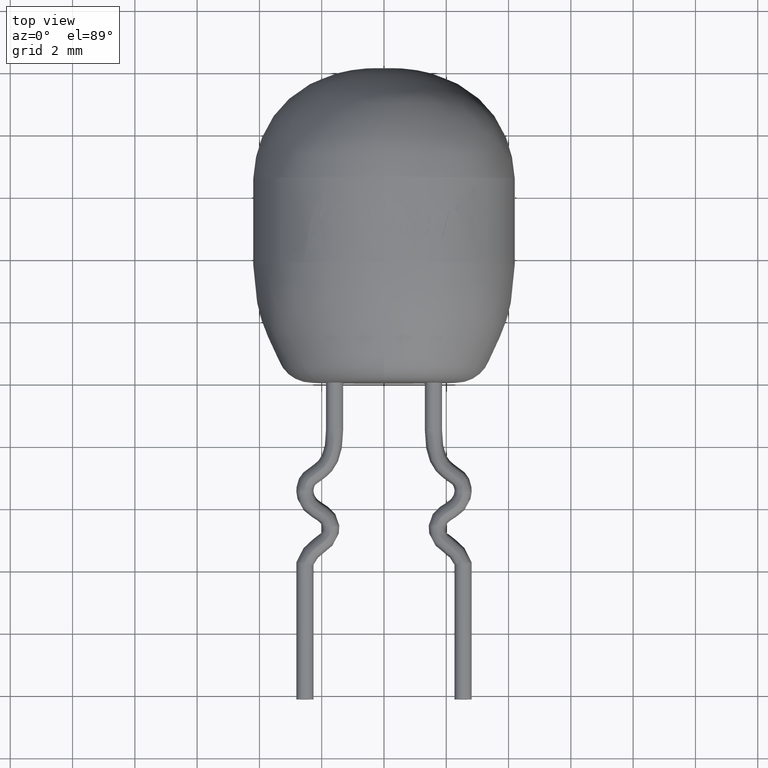
[diagram: clean part render]
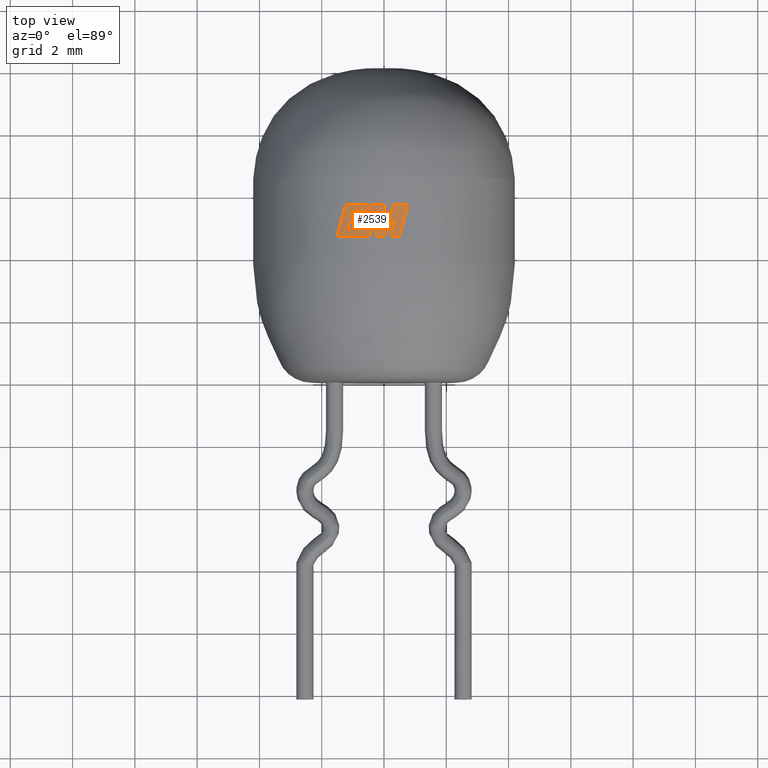
[diagram: same view with one face highlighted and labeled with its STEP entity id]
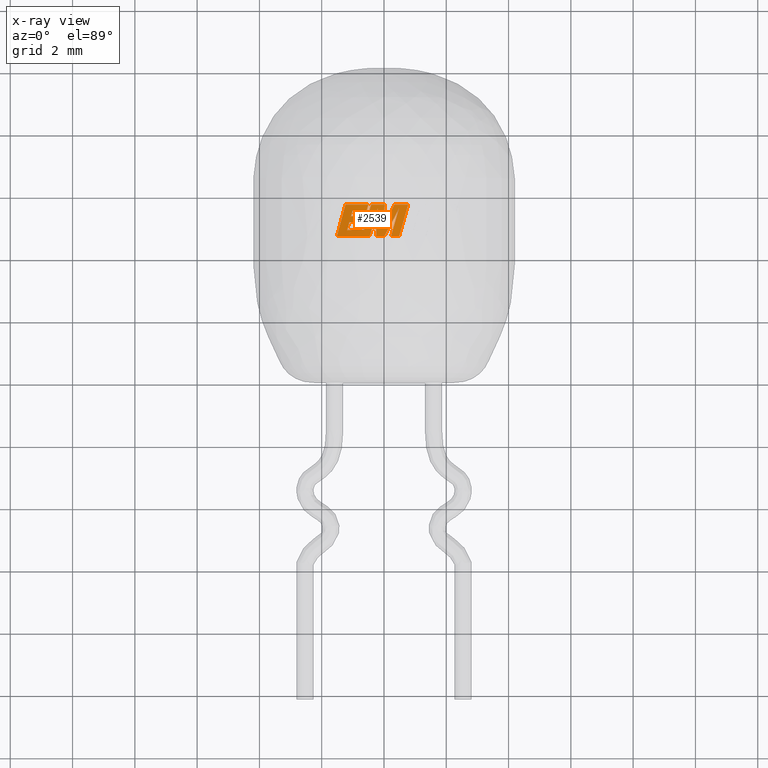
[diagram: x-ray of the same camera — body ghosted, the highlighted face saturated]
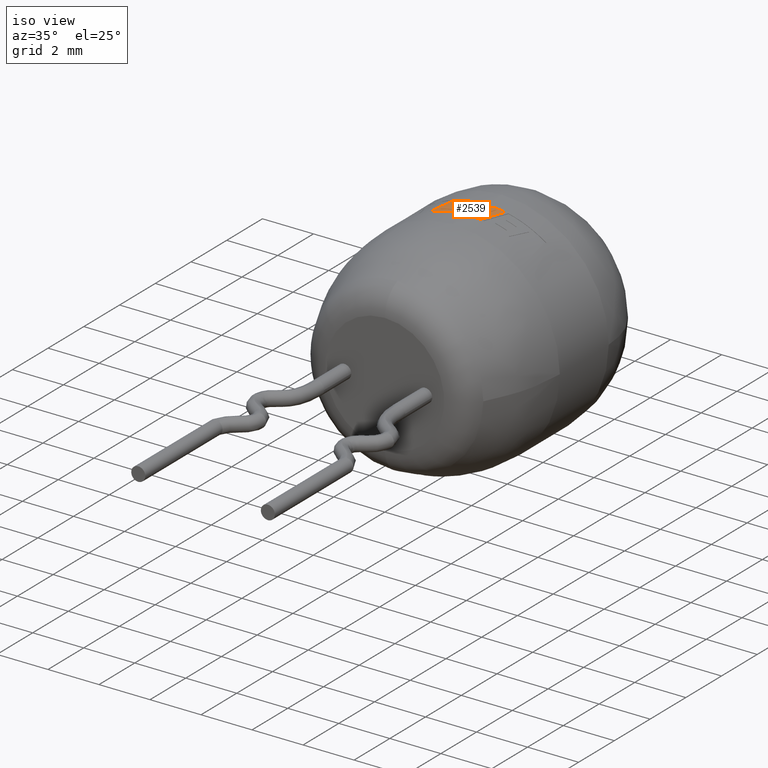
[diagram: same view with one face highlighted and labeled with its STEP entity id]
A machine part, top view. The second image highlights one B-rep face of the part: STEP entity #2539.
The next image is the same camera in x-ray: the body ghosted, the highlighted face saturated — about 0% of this face is hidden behind the body in this view.
A second angle (iso view) of the same face is appended — the face is thin or edge-on in the first view.
In plain terms, the highlighted cylindrical surface (partial cylindrical patch) has radius 4.19 mm, axis along (-0, -1, -0).
Its self-contained STEP definition (entity closure, byte-faithful):
#2 = CARTESIAN_POINT ( 'NONE',  ( 0.0000000000000000000, 4.638143343826302900, 0.0000000000000000000 ) ) ;
#6 = DIRECTION ( 'NONE',  ( 0.0000000000000000000, 0.0000000000000000000, -1.000000000000000000 ) ) ;
#15 = EDGE_CURVE ( 'NONE', #822, #416, #1173, .T. ) ;
#47 = CARTESIAN_POINT ( 'NONE',  ( -0.4583569405541485500, 4.638143343826302900, 4.164854008851432500 ) ) ;
#93 = EDGE_CURVE ( 'NONE', #3045, #3731, #2008, .T. ) ;
#249 = B_SPLINE_CURVE_WITH_KNOTS ( 'NONE', 3,
 ( #3732, #4161, #2361, #4533 ),
 .UNSPECIFIED., .F., .F.,
 ( 4, 4 ),
 ( 0.0000000000000000000, 1.000000000000000000 ),
 .UNSPECIFIED. ) ;
#250 = AXIS2_PLACEMENT_3D ( 'NONE', #2, #5716, #3066 ) ;
#262 = EDGE_CURVE ( 'NONE', #1455, #5232, #5220, .T. ) ;
#269 = VERTEX_POINT ( 'NONE', #5280 ) ;
#271 = ORIENTED_EDGE ( 'NONE', *, *, #1000, .F. ) ;
#282 = CARTESIAN_POINT ( 'NONE',  ( -0.007537431420621316200, 5.166097507863295100, 4.190013053159339600 ) ) ;
#360 = AXIS2_PLACEMENT_3D ( 'NONE', #5462, #3710, #2419 ) ;
#401 = CARTESIAN_POINT ( 'NONE',  ( 0.3181570098392297900, 4.938738374337305900, 4.178790733340712800 ) ) ;
#416 = VERTEX_POINT ( 'NONE', #2033 ) ;
#437 = EDGE_CURVE ( 'NONE', #2758, #269, #4368, .T. ) ;
#448 = CIRCLE ( 'NONE', #451, 4.190000000000001300 ) ;
#451 = AXIS2_PLACEMENT_3D ( 'NONE', #1676, #4654, #5219 ) ;
#460 = CARTESIAN_POINT ( 'NONE',  ( -1.185196709016116000, 4.829930339892737100, 4.018881531090134000 ) ) ;
#464 = CARTESIAN_POINT ( 'NONE',  ( 0.6778167886180592700, 5.310193749663034700, 4.135934410469850800 ) ) ;
#470 = ORIENTED_EDGE ( 'NONE', *, *, #15, .T. ) ;
#477 = CARTESIAN_POINT ( 'NONE',  ( -1.162427017356346000, 4.913445704328909300, 4.025596474890218900 ) ) ;
#501 = DIRECTION ( 'NONE',  ( -0.0000000000000000000, -1.000000000000000000, -0.0000000000000000000 ) ) ;
#533 = ORIENTED_EDGE ( 'NONE', *, *, #3682, .F. ) ;
#566 = DIRECTION ( 'NONE',  ( -0.0000000000000000000, -1.000000000000000000, -0.0000000000000000000 ) ) ;
#648 = CARTESIAN_POINT ( 'NONE',  ( -1.418078816155942300, 4.974168546744667900, 3.943914024496912900 ) ) ;
#654 = AXIS2_PLACEMENT_3D ( 'NONE', #5563, #3803, #2517 ) ;
#665 = CARTESIAN_POINT ( 'NONE',  ( 0.0000000000000000000, 5.646218952581399700, 0.0000000000000000000 ) ) ;
#685 = CARTESIAN_POINT ( 'NONE',  ( -0.2522347263218190400, 4.638143343826302900, 4.182400942381942600 ) ) ;
#694 = VERTEX_POINT ( 'NONE', #5703 ) ;
#759 = CARTESIAN_POINT ( 'NONE',  ( 0.0000000000000000000, 5.266835032749344900, 0.0000000000000000000 ) ) ;
#790 = B_SPLINE_CURVE_WITH_KNOTS ( 'NONE', 3,
 ( #5547, #4603, #648, #2403 ),
 .UNSPECIFIED., .F., .F.,
 ( 4, 4 ),
 ( 0.0000000000000000000, 1.000000000000000000 ),
 .UNSPECIFIED. ) ;
#791 = CARTESIAN_POINT ( 'NONE',  ( -0.4093811949506660500, 5.646218952581399700, 4.169952881894563900 ) ) ;
#810 = CARTESIAN_POINT ( 'NONE',  ( 0.3355474842542870400, 5.646218952581400600, 4.176542575601334100 ) ) ;
#822 = VERTEX_POINT ( 'NONE', #2048 ) ;
#827 = CARTESIAN_POINT ( 'NONE',  ( -1.065508509919544700, 5.266835032749344900, 4.052257594883257300 ) ) ;
#850 = EDGE_CURVE ( 'NONE', #2373, #3713, #448, .T. ) ;
#912 = CARTESIAN_POINT ( 'NONE',  ( 0.3322953650186756800, 5.239333404848309800, 4.179801556906435100 ) ) ;
#923 = B_SPLINE_CURVE_WITH_KNOTS ( 'NONE', 3,
 ( #1507, #5487, #4968, #3691 ),
 .UNSPECIFIED., .F., .F.,
 ( 4, 4 ),
 ( 0.0000000000000000000, 1.000000000000000000 ),
 .UNSPECIFIED. ) ;
#934 = CARTESIAN_POINT ( 'NONE',  ( -0.2021232349208143300, 5.535606561229161400, 4.185122005139773700 ) ) ;
#991 = CARTESIAN_POINT ( 'NONE',  ( 0.2321738366469667800, 4.638143343826302900, 4.183562514123176300 ) ) ;
#1000 = EDGE_CURVE ( 'NONE', #2637, #4742, #1565, .T. ) ;
#1071 = DIRECTION ( 'NONE',  ( 0.0000000000000000000, 0.0000000000000000000, -1.000000000000000000 ) ) ;
#1117 = CARTESIAN_POINT ( 'NONE',  ( 0.0000000000000000000, 5.080476433201253500, 0.0000000000000000000 ) ) ;
#1173 = CIRCLE ( 'NONE', #5632, 4.190000000000001300 ) ;
#1214 = ORIENTED_EDGE ( 'NONE', *, *, #3918, .T. ) ;
#1221 = CARTESIAN_POINT ( 'NONE',  ( -1.508078266213100500, 4.638143343826302900, 3.909194283094112900 ) ) ;
#1227 = EDGE_CURVE ( 'NONE', #5330, #1603, #2794, .T. ) ;
#1313 = ORIENTED_EDGE ( 'NONE', *, *, #3007, .T. ) ;
#1319 = ORIENTED_EDGE ( 'NONE', *, *, #2189, .T. ) ;
#1404 = ORIENTED_EDGE ( 'NONE', *, *, #93, .T. ) ;
#1444 = ORIENTED_EDGE ( 'NONE', *, *, #3867, .T. ) ;
#1450 = EDGE_CURVE ( 'NONE', #694, #2373, #3528, .T. ) ;
#1455 = VERTEX_POINT ( 'NONE', #4730 ) ;
#1507 = CARTESIAN_POINT ( 'NONE',  ( -1.065508509919544700, 5.266835032749344900, 4.052257594883257300 ) ) ;
#1518 = VERTEX_POINT ( 'NONE', #4313 ) ;
#1534 = ORIENTED_EDGE ( 'NONE', *, *, #1227, .T. ) ;
#1558 = CARTESIAN_POINT ( 'NONE',  ( -0.5090844841951857000, 5.646218952581399700, 4.158958161361055300 ) ) ;
#1565 = CIRCLE ( 'NONE', #4244, 4.190000000000001300 ) ;
#1595 = ORIENTED_EDGE ( 'NONE', *, *, #4724, .T. ) ;
#1603 = VERTEX_POINT ( 'NONE', #3059 ) ;
#1641 = CIRCLE ( 'NONE', #360, 4.190000000000001300 ) ;
#1672 = ORIENTED_EDGE ( 'NONE', *, *, #437, .T. ) ;
#1676 = CARTESIAN_POINT ( 'NONE',  ( 0.0000000000000000000, 5.646218952581399700, 0.0000000000000000000 ) ) ;
#1694 = ORIENTED_EDGE ( 'NONE', *, *, #1450, .T. ) ;
#1774 = CARTESIAN_POINT ( 'NONE',  ( 0.0000000000000000000, 5.454336936588942900, 0.0000000000000000000 ) ) ;
#1807 = CARTESIAN_POINT ( 'NONE',  ( -1.139600257282881800, 4.996961068765081400, 4.032117905385372400 ) ) ;
#1853 = DIRECTION ( 'NONE',  ( -0.0000000000000000000, -1.000000000000000000, -0.0000000000000000000 ) ) ;
#1899 = ORIENTED_EDGE ( 'NONE', *, *, #3291, .T. ) ;
#1990 = ORIENTED_EDGE ( 'NONE', *, *, #2301, .F. ) ;
#2008 = B_SPLINE_CURVE_WITH_KNOTS ( 'NONE', 3,
 ( #3923, #2643, #912, #3116 ),
 .UNSPECIFIED., .F., .F.,
 ( 4, 4 ),
 ( 0.0000000000000000000, 1.000000000000000000 ),
 .UNSPECIFIED. ) ;
#2010 = CARTESIAN_POINT ( 'NONE',  ( 0.01824618404278272400, 5.646218952581399700, 4.189960271502331900 ) ) ;
#2033 = CARTESIAN_POINT ( 'NONE',  ( -1.185196709016116000, 4.829930339892737100, 4.018881531090134000 ) ) ;
#2044 = DIRECTION ( 'NONE',  ( 0.0000000000000000000, 0.0000000000000000000, -1.000000000000000000 ) ) ;
#2048 = CARTESIAN_POINT ( 'NONE',  ( -0.6415746131775085200, 4.829930339892736200, 4.140589573445566000 ) ) ;
#2066 = CARTESIAN_POINT ( 'NONE',  ( -0.4583569405541485500, 4.638143343826302900, 4.164854008851432500 ) ) ;
#2067 = DIRECTION ( 'NONE',  ( -0.0000000000000000000, -1.000000000000000000, -0.0000000000000000000 ) ) ;
#2126 = CARTESIAN_POINT ( 'NONE',  ( 0.09834829044280989100, 5.166097507863295100, 4.190529323671769100 ) ) ;
#2189 = EDGE_CURVE ( 'NONE', #5676, #2884, #2310, .T. ) ;
#2191 = CARTESIAN_POINT ( 'NONE',  ( -0.6415746131775085200, 4.829930339892736200, 4.140589573445566000 ) ) ;
#2214 = CARTESIAN_POINT ( 'NONE',  ( -0.5644703326228315300, 5.102026544122291600, 4.152536700320551300 ) ) ;
#2250 = CARTESIAN_POINT ( 'NONE',  ( -0.6781049914871404300, 5.142595966383950700, 4.134801923154230800 ) ) ;
#2299 = B_SPLINE_CURVE_WITH_KNOTS ( 'NONE', 3,
 ( #791, #3413, #2214, #2191 ),
 .UNSPECIFIED., .F., .F.,
 ( 4, 4 ),
 ( 0.0000000000000000000, 1.000000000000000000 ),
 .UNSPECIFIED. ) ;
#2301 = EDGE_CURVE ( 'NONE', #3045, #4972, #1641, .T. ) ;
#2310 = B_SPLINE_CURVE_WITH_KNOTS ( 'NONE', 3,
 ( #47, #3562, #3598, #934 ),
 .UNSPECIFIED., .F., .F.,
 ( 4, 4 ),
 ( 0.0000000000000000000, 1.000000000000000000 ),
 .UNSPECIFIED. ) ;
#2333 = EDGE_CURVE ( 'NONE', #1455, #2758, #249, .T. ) ;
#2361 = CARTESIAN_POINT ( 'NONE',  ( -0.5270731421877311600, 5.582258280583914700, 4.156756228492247000 ) ) ;
#2373 = VERTEX_POINT ( 'NONE', #2010 ) ;
#2403 = CARTESIAN_POINT ( 'NONE',  ( -1.508078266213100500, 4.638143343826302900, 3.909194283094112900 ) ) ;
#2419 = DIRECTION ( 'NONE',  ( 0.0000000000000000000, 0.0000000000000000000, -1.000000000000000000 ) ) ;
#2482 = VERTEX_POINT ( 'NONE', #4638 ) ;
#2491 = AXIS2_PLACEMENT_3D ( 'NONE', #1774, #501, #6 ) ;
#2516 = EDGE_CURVE ( 'NONE', #1603, #4705, #2591, .T. ) ;
#2517 = DIRECTION ( 'NONE',  ( 0.0000000000000000000, 0.0000000000000000000, -1.000000000000000000 ) ) ;
#2539 = ADVANCED_FACE ( 'NONE', ( #5566 ), #5560, .T. ) ;
#2559 = ORIENTED_EDGE ( 'NONE', *, *, #2970, .T. ) ;
#2591 = CIRCLE ( 'NONE', #3777, 4.190000000000001300 ) ;
#2637 = VERTEX_POINT ( 'NONE', #4393 ) ;
#2643 = CARTESIAN_POINT ( 'NONE',  ( 0.1740231027074786400, 4.938738374337306800, 4.189376710735670500 ) ) ;
#2698 = CARTESIAN_POINT ( 'NONE',  ( -0.6606310346050546800, 5.204715499566647800, 4.137629751357213300 ) ) ;
#2758 = VERTEX_POINT ( 'NONE', #1558 ) ;
#2762 = CARTESIAN_POINT ( 'NONE',  ( -0.6955603276604686000, 5.080476433201253500, 4.131863481600628800 ) ) ;
#2772 = CIRCLE ( 'NONE', #5306, 4.190000000000001300 ) ;
#2794 = B_SPLINE_CURVE_WITH_KNOTS ( 'NONE', 3,
 ( #2762, #2250, #2698, #4948 ),
 .UNSPECIFIED., .F., .F.,
 ( 4, 4 ),
 ( 0.0000000000000000000, 1.000000000000000000 ),
 .UNSPECIFIED. ) ;
#2876 = CARTESIAN_POINT ( 'NONE',  ( 0.0000000000000000000, 5.646218952581399700, 0.0000000000000000000 ) ) ;
#2884 = VERTEX_POINT ( 'NONE', #5061 ) ;
#2919 = DIRECTION ( 'NONE',  ( 0.0000000000000000000, 0.0000000000000000000, -1.000000000000000000 ) ) ;
#2929 = CARTESIAN_POINT ( 'NONE',  ( 0.0000000000000000000, 4.638143343826302900, 0.0000000000000000000 ) ) ;
#2970 = EDGE_CURVE ( 'NONE', #4705, #5232, #923, .T. ) ;
#2993 = CIRCLE ( 'NONE', #4176, 4.190000000000001300 ) ;
#3007 = EDGE_CURVE ( 'NONE', #4524, #2482, #5052, .T. ) ;
#3045 = VERTEX_POINT ( 'NONE', #4222 ) ;
#3059 = CARTESIAN_POINT ( 'NONE',  ( -0.6431398603377729300, 5.266835032749344900, 4.140346739108298200 ) ) ;
#3061 = CARTESIAN_POINT ( 'NONE',  ( 0.2171501965694099300, 5.406158230222347400, 4.186054728609727600 ) ) ;
#3066 = DIRECTION ( 'NONE',  ( 0.0000000000000000000, 0.0000000000000000000, -1.000000000000000000 ) ) ;
#3078 = CARTESIAN_POINT ( 'NONE',  ( 0.4895187596182334300, 5.539928435359312800, 4.161306451582463600 ) ) ;
#3116 = CARTESIAN_POINT ( 'NONE',  ( 0.4895187596182334300, 5.539928435359312800, 4.161306451582463600 ) ) ;
#3132 = B_SPLINE_CURVE_WITH_KNOTS ( 'NONE', 3,
 ( #460, #477, #1807, #5321 ),
 .UNSPECIFIED., .F., .F.,
 ( 4, 4 ),
 ( 0.0000000000000000000, 1.000000000000000000 ),
 .UNSPECIFIED. ) ;
#3157 = CARTESIAN_POINT ( 'NONE',  ( -0.4093811949506660500, 5.646218952581399700, 4.169952881894563900 ) ) ;
#3180 = CARTESIAN_POINT ( 'NONE',  ( 0.0000000000000000000, 4.829930339892736200, 0.0000000000000000000 ) ) ;
#3200 = EDGE_CURVE ( 'NONE', #3490, #3844, #4059, .T. ) ;
#3266 = CARTESIAN_POINT ( 'NONE',  ( -0.2522347263218190400, 4.638143343826302900, 4.182400942381942600 ) ) ;
#3291 = EDGE_CURVE ( 'NONE', #3731, #3844, #4427, .T. ) ;
#3301 = ORIENTED_EDGE ( 'NONE', *, *, #2516, .T. ) ;
#3318 = DIRECTION ( 'NONE',  ( -0.0000000000000000000, -1.000000000000000000, -0.0000000000000000000 ) ) ;
#3333 = DIRECTION ( 'NONE',  ( 0.0000000000000000000, 0.0000000000000000000, -1.000000000000000000 ) ) ;
#3378 = CARTESIAN_POINT ( 'NONE',  ( 0.005354505859728640600, 5.406158230222347400, 4.190016411398060500 ) ) ;
#3403 = EDGE_LOOP ( 'NONE', ( #1313, #1595, #1694, #5023, #4037, #470, #4879, #4410, #1534, #3301, #2559, #4619, #4563, #1672, #1214, #271, #533, #1319, #1444, #1990, #1404, #1899, #3704, #4598 ) ) ;
#3413 = CARTESIAN_POINT ( 'NONE',  ( -0.4870322664230405900, 5.374122748351845200, 4.162329561121184800 ) ) ;
#3427 = CARTESIAN_POINT ( 'NONE',  ( -1.012779497390918300, 5.454336936588942900, 4.065756717963410900 ) ) ;
#3490 = VERTEX_POINT ( 'NONE', #4568 ) ;
#3528 = B_SPLINE_CURVE_WITH_KNOTS ( 'NONE', 3,
 ( #5626, #282, #3378, #3794 ),
 .UNSPECIFIED., .F., .F.,
 ( 4, 4 ),
 ( 0.0000000000000000000, 1.000000000000000000 ),
 .UNSPECIFIED. ) ;
#3562 = CARTESIAN_POINT ( 'NONE',  ( -0.3731797548130249600, 4.937297749627255400, 4.174228059941420100 ) ) ;
#3598 = CARTESIAN_POINT ( 'NONE',  ( -0.2877149300014727500, 5.236452155428208900, 4.180988297622808300 ) ) ;
#3632 = DIRECTION ( 'NONE',  ( 0.0000000000000000000, 0.0000000000000000000, -1.000000000000000000 ) ) ;
#3682 = EDGE_CURVE ( 'NONE', #5676, #2637, #2772, .T. ) ;
#3691 = CARTESIAN_POINT ( 'NONE',  ( -1.012779497390918300, 5.454336936588942900, 4.065756717963410900 ) ) ;
#3704 = ORIENTED_EDGE ( 'NONE', *, *, #3200, .F. ) ;
#3710 = DIRECTION ( 'NONE',  ( -0.0000000000000000000, -1.000000000000000000, -0.0000000000000000000 ) ) ;
#3713 = VERTEX_POINT ( 'NONE', #3157 ) ;
#3728 = AXIS2_PLACEMENT_3D ( 'NONE', #665, #4226, #5133 ) ;
#3731 = VERTEX_POINT ( 'NONE', #5403 ) ;
#3732 = CARTESIAN_POINT ( 'NONE',  ( -0.5630060864984733900, 5.454336936588942900, 4.152002426127142900 ) ) ;
#3751 = CARTESIAN_POINT ( 'NONE',  ( -0.2355365274589378300, 4.937297749627255400, 4.183407987301420100 ) ) ;
#3777 = AXIS2_PLACEMENT_3D ( 'NONE', #759, #2067, #3333 ) ;
#3794 = CARTESIAN_POINT ( 'NONE',  ( 0.01824618404278272400, 5.646218952581399700, 4.189960271502331900 ) ) ;
#3803 = DIRECTION ( 'NONE',  ( -0.0000000000000000000, -1.000000000000000000, -0.0000000000000000000 ) ) ;
#3844 = VERTEX_POINT ( 'NONE', #991 ) ;
#3867 = EDGE_CURVE ( 'NONE', #2884, #4972, #4734, .T. ) ;
#3918 = EDGE_CURVE ( 'NONE', #269, #4742, #790, .T. ) ;
#3923 = CARTESIAN_POINT ( 'NONE',  ( 0.01571671585851745100, 4.638143343826302900, 4.189970523147225700 ) ) ;
#3926 = EDGE_CURVE ( 'NONE', #5330, #1518, #2993, .T. ) ;
#3932 = CARTESIAN_POINT ( 'NONE',  ( 0.4039930068358617000, 5.239333404848309800, 4.171367344935204000 ) ) ;
#4037 = ORIENTED_EDGE ( 'NONE', *, *, #4754, .T. ) ;
#4059 = CIRCLE ( 'NONE', #250, 4.190000000000001300 ) ;
#4161 = CARTESIAN_POINT ( 'NONE',  ( -0.5450475140074815300, 5.518297608586428800, 4.154437585016653500 ) ) ;
#4176 = AXIS2_PLACEMENT_3D ( 'NONE', #1117, #3318, #1071 ) ;
#4222 = CARTESIAN_POINT ( 'NONE',  ( 0.01571671585851745100, 4.638143343826302900, 4.189970523147225700 ) ) ;
#4226 = DIRECTION ( 'NONE',  ( -0.0000000000000000000, -1.000000000000000000, -0.0000000000000000000 ) ) ;
#4244 = AXIS2_PLACEMENT_3D ( 'NONE', #2929, #4649, #2044 ) ;
#4313 = CARTESIAN_POINT ( 'NONE',  ( -1.116719725969667500, 5.080476433201253500, 4.038444880598254000 ) ) ;
#4319 = CARTESIAN_POINT ( 'NONE',  ( 0.2321738366469667800, 4.638143343826302900, 4.183562514123176300 ) ) ;
#4368 = CIRCLE ( 'NONE', #3728, 4.190000000000001300 ) ;
#4393 = CARTESIAN_POINT ( 'NONE',  ( -0.6358174644214060800, 4.638143343826302900, 4.141477532467941800 ) ) ;
#4410 = ORIENTED_EDGE ( 'NONE', *, *, #3926, .F. ) ;
#4427 = B_SPLINE_CURVE_WITH_KNOTS ( 'NONE', 3,
 ( #3078, #3932, #401, #4319 ),
 .UNSPECIFIED., .F., .F.,
 ( 4, 4 ),
 ( 0.0000000000000000000, 1.000000000000000000 ),
 .UNSPECIFIED. ) ;
#4434 = CARTESIAN_POINT ( 'NONE',  ( 0.5824761355332874800, 4.974168546744667900, 4.150434989031305500 ) ) ;
#4466 = CARTESIAN_POINT ( 'NONE',  ( -0.6955603276604686000, 5.080476433201253500, 4.131863481600628800 ) ) ;
#4475 = CARTESIAN_POINT ( 'NONE',  ( 0.0000000000000000000, 4.638143343826302900, 0.0000000000000000000 ) ) ;
#4524 = VERTEX_POINT ( 'NONE', #4874 ) ;
#4533 = CARTESIAN_POINT ( 'NONE',  ( -0.5090844841951857000, 5.646218952581399700, 4.158958161361055300 ) ) ;
#4563 = ORIENTED_EDGE ( 'NONE', *, *, #2333, .T. ) ;
#4568 = CARTESIAN_POINT ( 'NONE',  ( 0.4867489799758166800, 4.638143343826302900, 4.161631342453642200 ) ) ;
#4581 = B_SPLINE_CURVE_WITH_KNOTS ( 'NONE', 3,
 ( #810, #3061, #2126, #5230 ),
 .UNSPECIFIED., .F., .F.,
 ( 4, 4 ),
 ( 0.0000000000000000000, 1.000000000000000000 ),
 .UNSPECIFIED. ) ;
#4584 = CARTESIAN_POINT ( 'NONE',  ( -0.2188322976027512200, 5.236452155428208900, 4.184315029907599700 ) ) ;
#4598 = ORIENTED_EDGE ( 'NONE', *, *, #4793, .T. ) ;
#4603 = CARTESIAN_POINT ( 'NONE',  ( -1.326879920617766400, 5.310193749663034700, 3.975524498442320800 ) ) ;
#4619 = ORIENTED_EDGE ( 'NONE', *, *, #262, .F. ) ;
#4638 = CARTESIAN_POINT ( 'NONE',  ( 0.3355474842542870400, 5.646218952581400600, 4.176542575601334100 ) ) ;
#4649 = DIRECTION ( 'NONE',  ( -0.0000000000000000000, -1.000000000000000000, -0.0000000000000000000 ) ) ;
#4654 = DIRECTION ( 'NONE',  ( -0.0000000000000000000, -1.000000000000000000, -0.0000000000000000000 ) ) ;
#4705 = VERTEX_POINT ( 'NONE', #827 ) ;
#4724 = EDGE_CURVE ( 'NONE', #2482, #694, #4581, .T. ) ;
#4730 = CARTESIAN_POINT ( 'NONE',  ( -0.5630060864984733900, 5.454336936588942900, 4.152002426127142900 ) ) ;
#4734 = B_SPLINE_CURVE_WITH_KNOTS ( 'NONE', 3,
 ( #5489, #4584, #3751, #3266 ),
 .UNSPECIFIED., .F., .F.,
 ( 4, 4 ),
 ( 0.0000000000000000000, 1.000000000000000000 ),
 .UNSPECIFIED. ) ;
#4742 = VERTEX_POINT ( 'NONE', #1221 ) ;
#4754 = EDGE_CURVE ( 'NONE', #3713, #822, #2299, .T. ) ;
#4793 = EDGE_CURVE ( 'NONE', #3490, #4524, #5080, .T. ) ;
#4819 = CARTESIAN_POINT ( 'NONE',  ( 0.4867489799758166800, 4.638143343826302900, 4.161631342453642200 ) ) ;
#4874 = CARTESIAN_POINT ( 'NONE',  ( 0.7725440971443315900, 5.646218952581399700, 4.118164107702297000 ) ) ;
#4879 = ORIENTED_EDGE ( 'NONE', *, *, #5278, .T. ) ;
#4891 = CARTESIAN_POINT ( 'NONE',  ( 0.7725440971443315900, 5.646218952581399700, 4.118164107702297000 ) ) ;
#4926 = DIRECTION ( 'NONE',  ( 0.0000000000000000000, 0.0000000000000000000, -1.000000000000000000 ) ) ;
#4948 = CARTESIAN_POINT ( 'NONE',  ( -0.6431398603377729300, 5.266835032749344900, 4.140346739108298200 ) ) ;
#4968 = CARTESIAN_POINT ( 'NONE',  ( -1.030384814311923400, 5.391836301975743600, 4.061371235688024100 ) ) ;
#4972 = VERTEX_POINT ( 'NONE', #685 ) ;
#5023 = ORIENTED_EDGE ( 'NONE', *, *, #850, .T. ) ;
#5052 = CIRCLE ( 'NONE', #5338, 4.190000000000001300 ) ;
#5061 = CARTESIAN_POINT ( 'NONE',  ( -0.2021232349208143300, 5.535606561229161400, 4.185122005139773700 ) ) ;
#5080 = B_SPLINE_CURVE_WITH_KNOTS ( 'NONE', 3,
 ( #4819, #4434, #464, #4891 ),
 .UNSPECIFIED., .F., .F.,
 ( 4, 4 ),
 ( 0.0000000000000000000, 1.000000000000000000 ),
 .UNSPECIFIED. ) ;
#5090 = DIRECTION ( 'NONE',  ( -0.0000000000000000000, -1.000000000000000000, -0.0000000000000000000 ) ) ;
#5133 = DIRECTION ( 'NONE',  ( 0.0000000000000000000, 0.0000000000000000000, -1.000000000000000000 ) ) ;
#5219 = DIRECTION ( 'NONE',  ( 0.0000000000000000000, 0.0000000000000000000, -1.000000000000000000 ) ) ;
#5220 = CIRCLE ( 'NONE', #2491, 4.190000000000001300 ) ;
#5230 = CARTESIAN_POINT ( 'NONE',  ( -0.02042907860620677900, 4.926036785504242800, 4.189950196929231700 ) ) ;
#5232 = VERTEX_POINT ( 'NONE', #3427 ) ;
#5278 = EDGE_CURVE ( 'NONE', #416, #1518, #3132, .T. ) ;
#5280 = CARTESIAN_POINT ( 'NONE',  ( -1.234698948118202200, 5.646218952581399700, 4.003950362768726700 ) ) ;
#5306 = AXIS2_PLACEMENT_3D ( 'NONE', #4475, #1853, #3632 ) ;
#5321 = CARTESIAN_POINT ( 'NONE',  ( -1.116719725969667500, 5.080476433201253500, 4.038444880598254000 ) ) ;
#5330 = VERTEX_POINT ( 'NONE', #4466 ) ;
#5338 = AXIS2_PLACEMENT_3D ( 'NONE', #2876, #5090, #2919 ) ;
#5403 = CARTESIAN_POINT ( 'NONE',  ( 0.4895187596182334300, 5.539928435359312800, 4.161306451582463600 ) ) ;
#5462 = CARTESIAN_POINT ( 'NONE',  ( 0.0000000000000000000, 4.638143343826302900, 0.0000000000000000000 ) ) ;
#5487 = CARTESIAN_POINT ( 'NONE',  ( -1.047961646161499100, 5.329335667362544300, 4.056871401438942600 ) ) ;
#5489 = CARTESIAN_POINT ( 'NONE',  ( -0.2021232349208143300, 5.535606561229161400, 4.185122005139773700 ) ) ;
#5547 = CARTESIAN_POINT ( 'NONE',  ( -1.234698948118202200, 5.646218952581399700, 4.003950362768726700 ) ) ;
#5560 = CYLINDRICAL_SURFACE ( 'NONE', #654, 4.190000000000001300 ) ;
#5563 = CARTESIAN_POINT ( 'NONE',  ( 0.0000000000000000000, 10.08714000000000000, 0.0000000000000000000 ) ) ;
#5566 = FACE_OUTER_BOUND ( 'NONE', #3403, .T. ) ;
#5626 = CARTESIAN_POINT ( 'NONE',  ( -0.02042907860620677900, 4.926036785504242800, 4.189950196929231700 ) ) ;
#5632 = AXIS2_PLACEMENT_3D ( 'NONE', #3180, #566, #4926 ) ;
#5676 = VERTEX_POINT ( 'NONE', #2066 ) ;
#5703 = CARTESIAN_POINT ( 'NONE',  ( -0.02042907860620677900, 4.926036785504242800, 4.189950196929231700 ) ) ;
#5716 = DIRECTION ( 'NONE',  ( -0.0000000000000000000, -1.000000000000000000, -0.0000000000000000000 ) ) ;